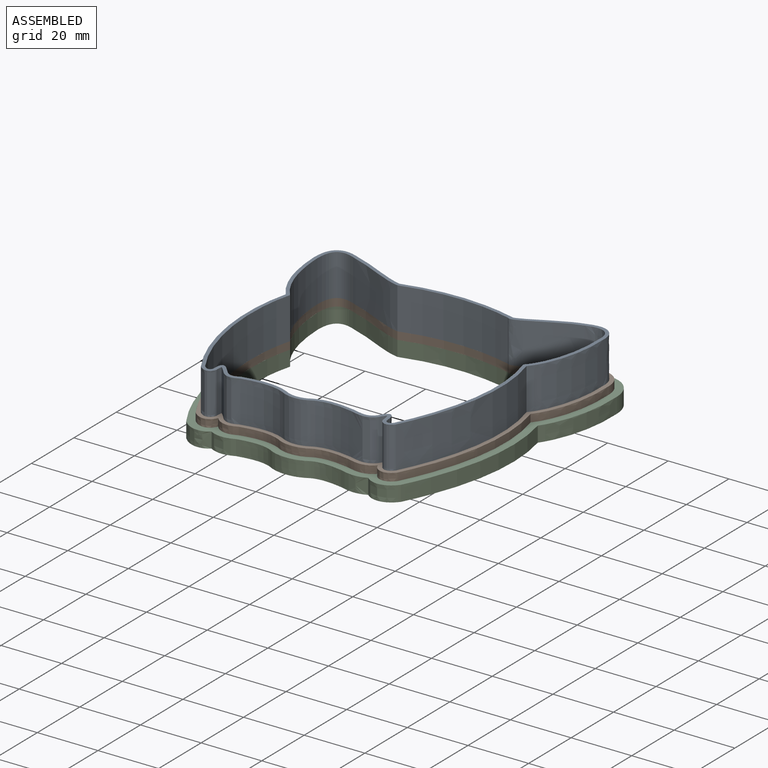
[diagram: assembled view]
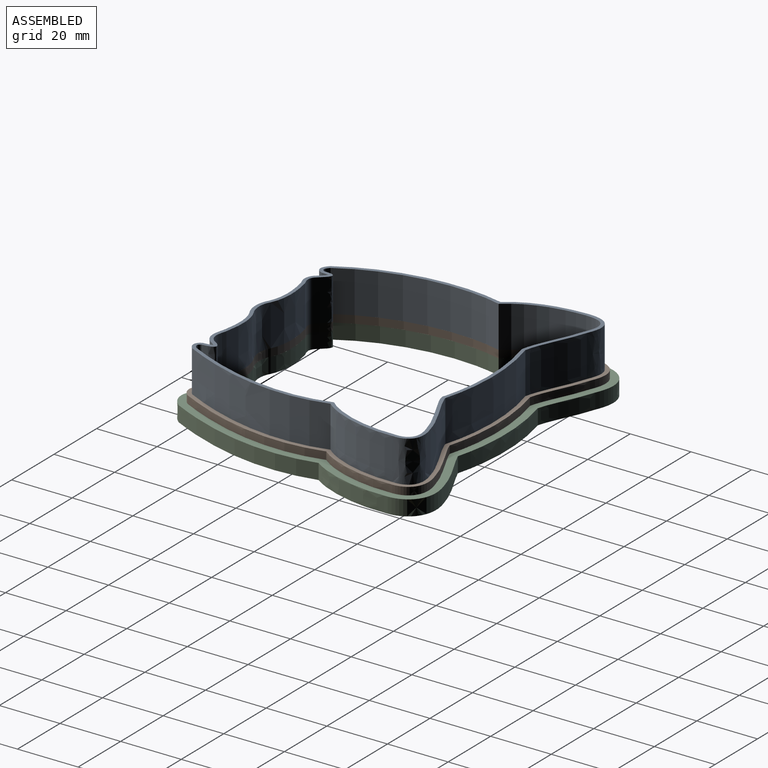
[diagram: assembled view, second angle]
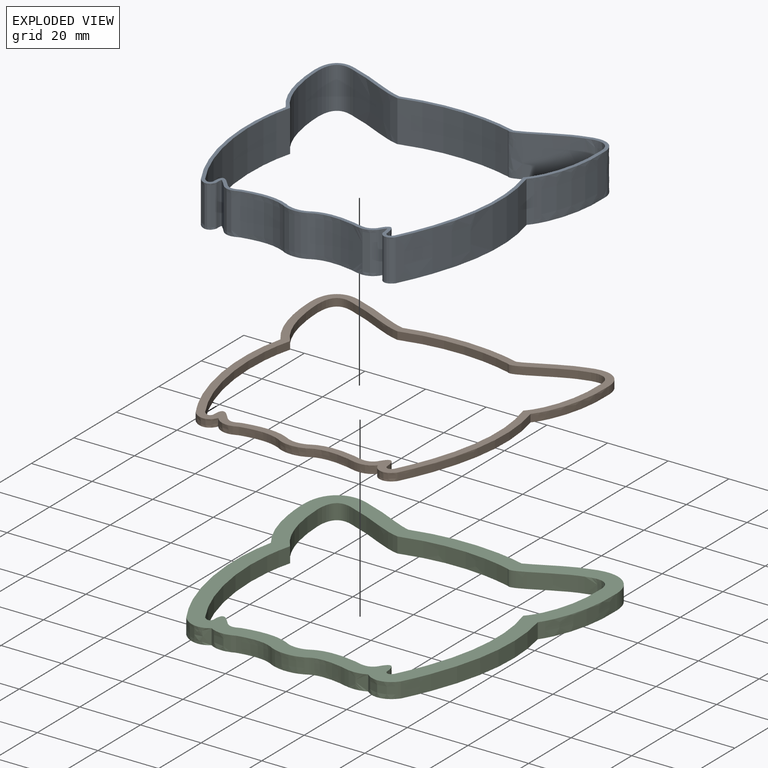
[diagram: exploded view]
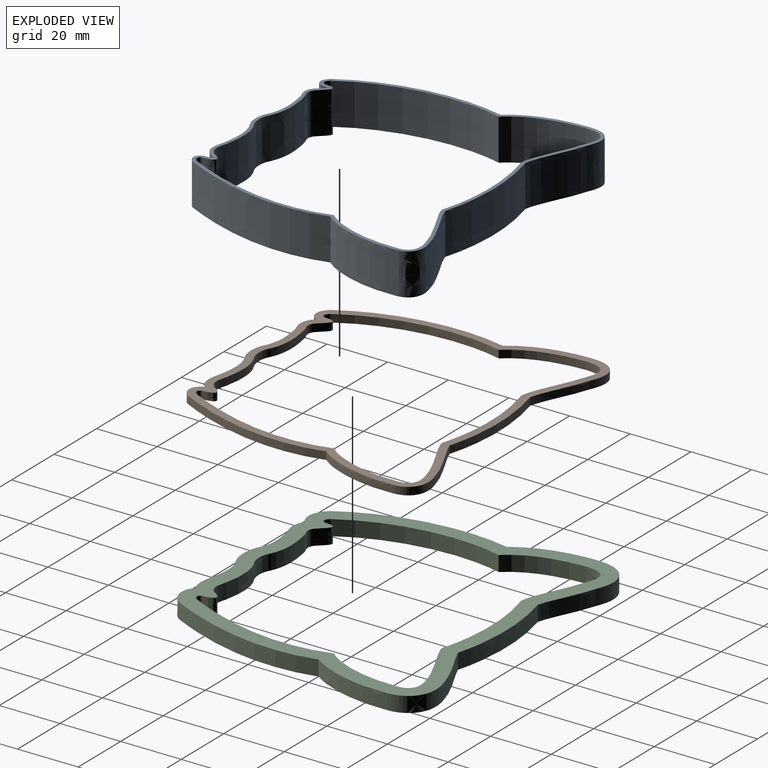
[diagram: exploded view, second angle]
ASSEMBLY  parts=3 mates=2
PART A: 40 faces, bbox 97.8x88.3x17.2 mm
  f0: plane 97.75x88.25mm, normal (0,0,1), area 387.1mm2, adj f2,f3,f4,f5,f6,f7,f8,f9
  f1: plane 97.75x88.25mm, normal (0,0,-1), area 387.1mm2, adj f2,f3,f4,f5,f6,f7,f8,f9
  f2: extruded ~13.72x1.98mm, area 33.7mm2, adj f0,f1,f15,f16
  f3: extruded ~13.72x2.18mm, area 30.1mm2, adj f0,f1,f9,f10
  f4: extruded ~37.49x13.72mm, area 520.9mm2, adj f0,f1,f5,f21
  f5: extruded ~18.49x13.72mm, area 273.2mm2, adj f0,f1,f4,f6
  f6: extruded ~13.72x10.21mm, area 218.2mm2, adj f0,f1,f5,f7
  f7: extruded ~23.9x13.72mm, area 349.1mm2, adj f0,f1,f6,f8
  f8: extruded ~50.78x13.72mm, area 722mm2, adj f0,f1,f7,f9
  f9: extruded ~13.72x4.77mm, area 84.8mm2, adj f0,f1,f3,f8
  f10: extruded ~13.72x2.82mm, area 53.7mm2, adj f0,f1,f3,f11
  f11: extruded ~13.72x5.67mm, area 83.5mm2, adj f0,f1,f10,f12
  f12: extruded ~14.35x13.72mm, area 200.5mm2, adj f0,f1,f11,f13
  f13: extruded ~13.72x9.16mm, area 131.6mm2, adj f0,f1,f12,f14
  f14: extruded ~13.72x13.12mm, area 183.7mm2, adj f0,f1,f13,f15
  f15: extruded ~13.72x8.06mm, area 120.2mm2, adj f0,f1,f2,f14
  f16: extruded ~13.72x2.93mm, area 41mm2, adj f0,f1,f2,f17
  f17: extruded ~13.72x4.52mm, area 78.5mm2, adj f0,f1,f16,f18
  f18: extruded ~50.86x13.72mm, area 722.1mm2, adj f0,f1,f17,f19
  f19: extruded ~25.5x13.72mm, area 371.4mm2, adj f0,f1,f18,f20
  f20: extruded ~13.72x9.6mm, area 192.8mm2, adj f0,f1,f19,f21
  f21: extruded ~18.48x13.72mm, area 277mm2, adj f0,f1,f4,f20
  f22: extruded ~36.35x13.72mm, area 504.8mm2, adj f0,f1,f23,f39
  f23: extruded ~18.93x13.72mm, area 279.4mm2, adj f0,f1,f22,f24
  f24: extruded ~13.72x8.68mm, area 188mm2, adj f0,f1,f23,f25
  f25: extruded ~23.64x13.72mm, area 346.5mm2, adj f0,f1,f24,f26
  f26: extruded ~50.35x13.72mm, area 715.6mm2, adj f0,f1,f25,f27
  f27: extruded ~13.72x2.72mm, area 48.3mm2, adj f0,f1,f26,f28
  f28: extruded ~13.72x4.81mm, area 121.1mm2, adj f0,f1,f27,f29
  f29: extruded ~13.72x4.5mm, area 66.2mm2, adj f0,f1,f28,f30
  f30: extruded ~15.25x13.72mm, area 213.2mm2, adj f0,f1,f29,f31
  f31: extruded ~13.72x8.04mm, area 115.6mm2, adj f0,f1,f30,f32
  f32: extruded ~13.96x13.72mm, area 195.5mm2, adj f0,f1,f31,f33
  f33: extruded ~13.72x6.85mm, area 101.4mm2, adj f0,f1,f32,f34
  f34: extruded ~13.72x4.03mm, area 112.7mm2, adj f0,f1,f33,f35
  f35: extruded ~13.72x2.44mm, area 42.4mm2, adj f0,f1,f34,f36
  f36: extruded ~50.51x13.72mm, area 717.2mm2, adj f0,f1,f35,f37
  f37: extruded ~25.21x13.72mm, area 368.8mm2, adj f0,f1,f36,f38
  f38: extruded ~13.72x8.14mm, area 163.6mm2, adj f0,f1,f37,f39
  f39: extruded ~19.88x13.72mm, area 297.3mm2, adj f0,f1,f22,f38
PART B: 37 faces, bbox 97.8x88.3x3.3 mm
  f0: plane 97.85x88.32mm, normal (0,0,1), area 866.8mm2, adj f2,f3,f4,f5,f6,f7,f8,f9
  f1: plane 97.85x88.32mm, normal (0,0,-1), area 866.8mm2, adj f2,f3,f4,f5,f6,f7,f8,f9
  f2: extruded ~37.58x2.63mm, area 96.6mm2, adj f0,f1,f3,f18
  f3: extruded ~17.97x7.19mm, area 49.2mm2, adj f0,f1,f2,f4
  f4: extruded ~12.08x9.34mm, area 47.3mm2, adj f0,f1,f3,f5
  f5: extruded ~24.21x7.23mm, area 65.2mm2, adj f0,f1,f4,f6
  f6: extruded ~51.32x9.75mm, area 135.1mm2, adj f0,f1,f5,f7
  f7: extruded ~7.07x2.54mm, area 22.3mm2, adj f0,f1,f6,f8
  f8: extruded ~2.54x0.79mm, area 2.6mm2, adj f0,f1,f7,f9
  f9: extruded ~7.09x2.54mm, area 19.3mm2, adj f0,f1,f8,f10
  f10: extruded ~13.26x2.54mm, area 34.3mm2, adj f0,f1,f9,f11
  f11: extruded ~10.5x2.54mm, area 27.9mm2, adj f0,f1,f10,f12
  f12: extruded ~12.11x2.54mm, area 31.3mm2, adj f0,f1,f11,f13
  f13: extruded ~9.02x2.54mm, area 24.5mm2, adj f0,f1,f12,f14
  f14: extruded ~7.02x2.69mm, area 22.8mm2, adj f0,f1,f13,f15
  f15: extruded ~51.31x9.85mm, area 134.9mm2, adj f0,f1,f14,f16
  f16: extruded ~25.82x7.19mm, area 69.4mm2, adj f0,f1,f15,f17
  f17: extruded ~11.39x8.05mm, area 42.3mm2, adj f0,f1,f16,f18
  f18: extruded ~18.05x7.93mm, area 50.2mm2, adj f0,f1,f2,f17
  f19: extruded ~36.35x2.56mm, area 93.5mm2, adj f0,f1,f20,f36
  f20: extruded ~18.93x7.4mm, area 51.7mm2, adj f0,f1,f19,f21
  f21: extruded ~8.68x6.77mm, area 34.8mm2, adj f0,f1,f20,f22
  f22: extruded ~23.64x7.47mm, area 64.2mm2, adj f0,f1,f21,f23
  f23: extruded ~50.35x9.23mm, area 132.5mm2, adj f0,f1,f22,f24
  f24: extruded ~2.72x2.54mm, area 8.9mm2, adj f0,f1,f23,f25
  f25: extruded ~4.81x3.29mm, area 22.4mm2, adj f0,f1,f24,f26
  f26: extruded ~4.5x2.54mm, area 12.3mm2, adj f0,f1,f25,f27
  f27: extruded ~15.25x2.54mm, area 39.5mm2, adj f0,f1,f26,f28
  f28: extruded ~8.04x2.54mm, area 21.4mm2, adj f0,f1,f27,f29
  f29: extruded ~13.96x2.54mm, area 36.2mm2, adj f0,f1,f28,f30
  f30: extruded ~6.85x2.54mm, area 18.8mm2, adj f0,f1,f29,f31
  f31: extruded ~4.03x3.94mm, area 20.9mm2, adj f0,f1,f30,f32
  f32: extruded ~2.54x2.44mm, area 7.9mm2, adj f0,f1,f31,f33
  f33: extruded ~50.51x9.43mm, area 132.8mm2, adj f0,f1,f32,f34
  f34: extruded ~25.21x7.47mm, area 68.3mm2, adj f0,f1,f33,f35
  f35: extruded ~8.14x5.49mm, area 30.3mm2, adj f0,f1,f34,f36
  f36: extruded ~19.88x8.09mm, area 55.1mm2, adj f0,f1,f19,f35
PART C: 36 faces, bbox 103x93.4x5.9 mm
  f0: plane 102.96x93.43mm, normal (0,0,1), area 1757.6mm2, adj f2,f3,f4,f5,f6,f7,f8,f9
  f1: plane 102.96x93.43mm, normal (0,0,-1), area 1757.6mm2, adj f2,f3,f4,f5,f6,f7,f8,f9
  f2: extruded ~37.56x5.08mm, area 193mm2, adj f0,f1,f3,f17
  f3: extruded ~17.06x6.96mm, area 93.7mm2, adj f0,f1,f2,f4
  f4: extruded ~15.49x11.92mm, area 119.5mm2, adj f0,f1,f3,f5
  f5: extruded ~24.73x7.03mm, area 132.5mm2, adj f0,f1,f4,f6
  f6: extruded ~52.34x10.28mm, area 275.9mm2, adj f0,f1,f5,f7
  f7: extruded ~9.48x5.08mm, area 54mm2, adj f0,f1,f6,f8
  f8: extruded ~8.16x5.08mm, area 43.2mm2, adj f0,f1,f7,f9
  f9: extruded ~11.31x5.08mm, area 58.4mm2, adj f0,f1,f8,f10
  f10: extruded ~12.91x5.08mm, area 68.6mm2, adj f0,f1,f9,f11
  f11: extruded ~10.27x5.08mm, area 53.1mm2, adj f0,f1,f10,f12
  f12: extruded ~8.98x5.08mm, area 46.8mm2, adj f0,f1,f11,f13
  f13: extruded ~9.78x5.08mm, area 57.2mm2, adj f0,f1,f12,f14
  f14: extruded ~52.19x10.26mm, area 274.6mm2, adj f0,f1,f13,f15
  f15: extruded ~26.37x6.95mm, area 140.8mm2, adj f0,f1,f14,f16
  f16: extruded ~14.64x10.6mm, area 108.6mm2, adj f0,f1,f15,f17
  f17: extruded ~17.4x7.72mm, area 96.9mm2, adj f0,f1,f2,f16
  f18: extruded ~36.35x5.08mm, area 187mm2, adj f0,f1,f19,f35
  f19: extruded ~18.93x7.4mm, area 103.5mm2, adj f0,f1,f18,f20
  f20: extruded ~8.68x6.77mm, area 69.6mm2, adj f0,f1,f19,f21
  f21: extruded ~23.64x7.47mm, area 128.3mm2, adj f0,f1,f20,f22
  f22: extruded ~50.35x9.23mm, area 265mm2, adj f0,f1,f21,f23
  f23: extruded ~5.08x2.72mm, area 17.9mm2, adj f0,f1,f22,f24
  f24: extruded ~5.08x4.81mm, area 44.8mm2, adj f0,f1,f23,f25
  f25: extruded ~5.08x4.5mm, area 24.5mm2, adj f0,f1,f24,f26
  f26: extruded ~15.25x5.08mm, area 79mm2, adj f0,f1,f25,f27
  f27: extruded ~8.04x5.08mm, area 42.8mm2, adj f0,f1,f26,f28
  f28: extruded ~13.96x5.08mm, area 72.4mm2, adj f0,f1,f27,f29
  f29: extruded ~6.85x5.08mm, area 37.5mm2, adj f0,f1,f28,f30
  f30: extruded ~5.08x4.03mm, area 41.8mm2, adj f0,f1,f29,f31
  f31: extruded ~5.08x2.44mm, area 15.7mm2, adj f0,f1,f30,f32
  f32: extruded ~50.51x9.43mm, area 265.6mm2, adj f0,f1,f31,f33
  f33: extruded ~25.21x7.47mm, area 136.6mm2, adj f0,f1,f32,f34
  f34: extruded ~8.14x5.49mm, area 60.6mm2, adj f0,f1,f33,f35
  f35: extruded ~19.88x8.09mm, area 110.1mm2, adj f0,f1,f18,f34
PLACE A at identity
PLACE B t=(137.82,14.56,-2.54)mm
PLACE C t=(-101.32,16.28,-7.62)mm
MATE fastened C.f0 <-> B.f1  axis (0,0,1) through (-43.56,24.13,-2.54)mm
MATE fastened B.f0 <-> A.f1  axis (0,0,1) through (-43.56,24.13,0)mm
